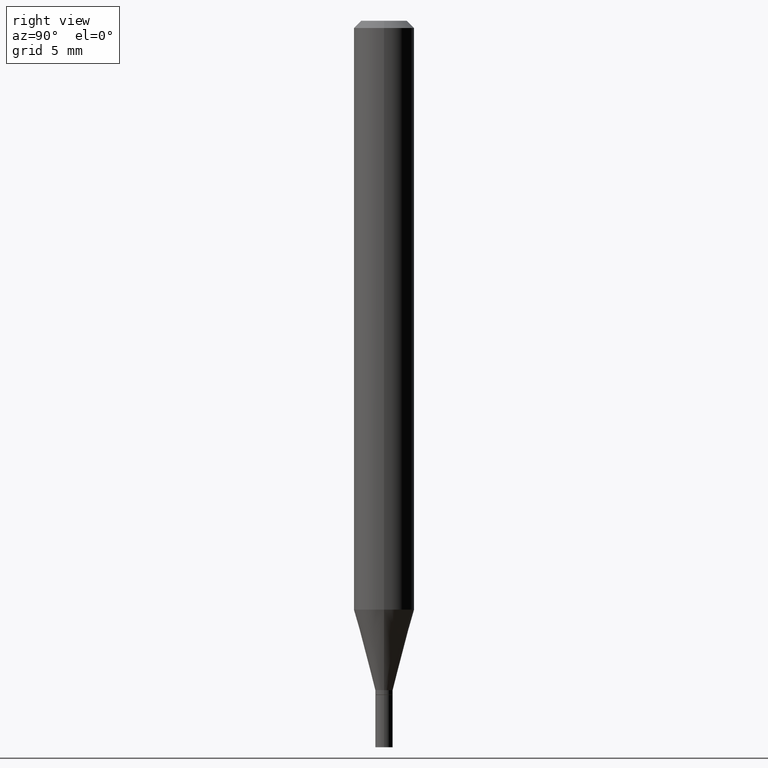
[diagram: clean part render]
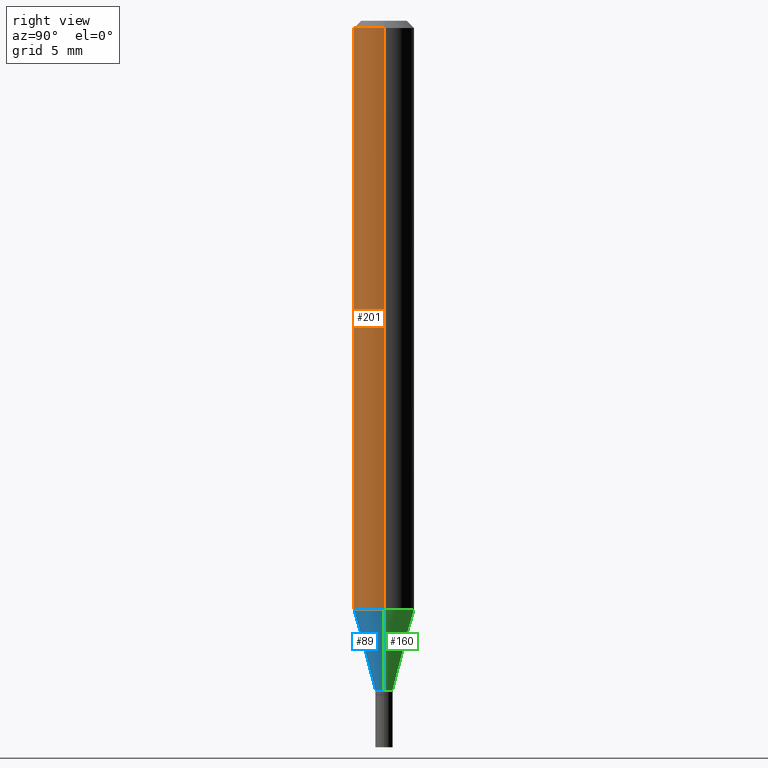
[diagram: same view with three faces highlighted in distinct colors, each labeled with its STEP entity id]
A machine part, right view with three faces highlighted in distinct colors.
Their STEP definitions:

[orange] entity #201 — the highlighted cylindrical surface (edge-blend (fillet) strip) has radius 1.5875 mm, axis along (-0, 0, 1).
#5 = DIRECTION ( 'NONE',  ( -2.445468806185136877E-29, 3.491481338843145188E-15, 1.000000000000000000 ) ) ;
#21 = LINE ( 'NONE', #234, #235 ) ;
#22 = EDGE_CURVE ( 'NONE', #134, #307, #421, .T. ) ;
#35 = CARTESIAN_POINT ( 'NONE',  ( 0.000000000000000000, 0.000000000000000000, 0.000000000000000000 ) ) ;
#49 = EDGE_CURVE ( 'NONE', #254, #442, #259, .T. ) ;
#52 = ORIENTED_EDGE ( 'NONE', *, *, #22, .F. ) ;
#55 = DIRECTION ( 'NONE',  ( -2.445468806185136597E-29, 3.491481338843145583E-15, 1.000000000000000000 ) ) ;
#64 = DIRECTION ( 'NONE',  ( 1.000000000000000000, -6.982962677686270655E-15, 0.000000000000000000 ) ) ;
#74 = EDGE_CURVE ( 'NONE', #254, #134, #145, .T. ) ;
#90 = AXIS2_PLACEMENT_3D ( 'NONE', #35, #200, #424 ) ;
#92 = VECTOR ( 'NONE', #5, 39.37007874015748143 ) ;
#109 = CYLINDRICAL_SURFACE ( 'NONE', #90, 0.06250000000000000000 ) ;
#134 = VERTEX_POINT ( 'NONE', #192 ) ;
#145 = LINE ( 'NONE', #386, #92 ) ;
#164 = CARTESIAN_POINT ( 'NONE',  ( 3.668203209277705088E-31, -5.237222008264718399E-17, -0.01499999999999999944 ) ) ;
#168 = EDGE_CURVE ( 'NONE', #442, #307, #21, .T. ) ;
#169 = CARTESIAN_POINT ( 'NONE',  ( -0.06250000000000001388, -3.801285834545430586E-15, -1.215923739063185183 ) ) ;
#182 = AXIS2_PLACEMENT_3D ( 'NONE', #232, #458, #64 ) ;
#192 = CARTESIAN_POINT ( 'NONE',  ( -0.06250000000000000000, -1.704784422389007524E-15, -0.01499999999999999944 ) ) ;
#200 = DIRECTION ( 'NONE',  ( -2.445468806185136597E-29, 3.491481338843145583E-15, 1.000000000000000000 ) ) ;
#201 = ADVANCED_FACE ( 'NONE', ( #276 ), #109, .T. ) ;
#230 = ORIENTED_EDGE ( 'NONE', *, *, #168, .T. ) ;
#232 = CARTESIAN_POINT ( 'NONE',  ( 2.973503574579014958E-29, -4.245375044395493202E-15, -1.215923739063185183 ) ) ;
#234 = CARTESIAN_POINT ( 'NONE',  ( 0.06250000000000000000, -4.364351673553916694E-16, 3.047610484872459871E-30 ) ) ;
#235 = VECTOR ( 'NONE', #382, 39.37007874015748143 ) ;
#254 = VERTEX_POINT ( 'NONE', #169 ) ;
#259 = CIRCLE ( 'NONE', #182, 0.06250000000000000000 ) ;
#276 = FACE_OUTER_BOUND ( 'NONE', #310, .T. ) ;
#283 = AXIS2_PLACEMENT_3D ( 'NONE', #164, #55, #454 ) ;
#292 = CARTESIAN_POINT ( 'NONE',  ( 0.06250000000000001388, -4.681810211750884871E-15, -1.215923739063185183 ) ) ;
#307 = VERTEX_POINT ( 'NONE', #387 ) ;
#310 = EDGE_LOOP ( 'NONE', ( #339, #417, #230, #52 ) ) ;
#339 = ORIENTED_EDGE ( 'NONE', *, *, #74, .F. ) ;
#382 = DIRECTION ( 'NONE',  ( -2.445468806185136877E-29, 3.491481338843145188E-15, 1.000000000000000000 ) ) ;
#386 = CARTESIAN_POINT ( 'NONE',  ( -0.06250000000000000000, 4.440892098500626162E-16, -3.074334431409316114E-30 ) ) ;
#387 = CARTESIAN_POINT ( 'NONE',  ( 0.06250000000000000000, -4.888073874380388472E-16, -0.01499999999999999944 ) ) ;
#417 = ORIENTED_EDGE ( 'NONE', *, *, #49, .T. ) ;
#421 = CIRCLE ( 'NONE', #283, 0.06250000000000000000 ) ;
#424 = DIRECTION ( 'NONE',  ( 1.000000000000000000, -6.982962677686266711E-15, 4.876176775795935793E-29 ) ) ;
#442 = VERTEX_POINT ( 'NONE', #292 ) ;
#454 = DIRECTION ( 'NONE',  ( 1.000000000000000000, -6.982962677686266711E-15, 0.000000000000000000 ) ) ;
#458 = DIRECTION ( 'NONE',  ( -2.445468806185136597E-29, 3.491481338843145583E-15, 1.000000000000000000 ) ) ;

[blue] entity #89 — the highlighted conical surface has half-angle 15 deg.
#23 = EDGE_CURVE ( 'NONE', #413, #442, #236, .T. ) ;
#32 = DIRECTION ( 'NONE',  ( -2.445468806185136597E-29, 3.491481338843145583E-15, 1.000000000000000000 ) ) ;
#41 = AXIS2_PLACEMENT_3D ( 'NONE', #247, #393, #76 ) ;
#49 = EDGE_CURVE ( 'NONE', #254, #442, #259, .T. ) ;
#64 = DIRECTION ( 'NONE',  ( 1.000000000000000000, -6.982962677686270655E-15, 0.000000000000000000 ) ) ;
#76 = DIRECTION ( 'NONE',  ( 1.000000000000000000, -6.982962677686256455E-15, 0.000000000000000000 ) ) ;
#86 = VECTOR ( 'NONE', #202, 39.37007874015748854 ) ;
#89 = ADVANCED_FACE ( 'NONE', ( #286 ), #389, .T. ) ;
#95 = ORIENTED_EDGE ( 'NONE', *, *, #414, .T. ) ;
#123 = CARTESIAN_POINT ( 'NONE',  ( 0.01799999999999991884, -4.950920538479579759E-15, -1.382000000000000117 ) ) ;
#148 = VECTOR ( 'NONE', #210, 39.37007874015748854 ) ;
#162 = ORIENTED_EDGE ( 'NONE', *, *, #49, .F. ) ;
#169 = CARTESIAN_POINT ( 'NONE',  ( -0.06250000000000001388, -3.801285834545430586E-15, -1.215923739063185183 ) ) ;
#182 = AXIS2_PLACEMENT_3D ( 'NONE', #232, #458, #64 ) ;
#202 = DIRECTION ( 'NONE',  ( 0.2588190451025211836, 1.565188264969622559E-15, 0.9659258262890679791 ) ) ;
#204 = CIRCLE ( 'NONE', #41, 0.01799999999999991884 ) ;
#210 = DIRECTION ( 'NONE',  ( -0.2588190451025211836, 5.211531920934547886E-15, 0.9659258262890679791 ) ) ;
#212 = CARTESIAN_POINT ( 'NONE',  ( 3.379637890147859239E-29, -4.825227210281227557E-15, -1.382000000000000117 ) ) ;
#216 = DIRECTION ( 'NONE',  ( 1.000000000000000000, -6.982962677686256455E-15, 0.000000000000000000 ) ) ;
#232 = CARTESIAN_POINT ( 'NONE',  ( 2.973503574579014958E-29, -4.245375044395493202E-15, -1.215923739063185183 ) ) ;
#236 = LINE ( 'NONE', #123, #86 ) ;
#242 = LINE ( 'NONE', #284, #148 ) ;
#247 = CARTESIAN_POINT ( 'NONE',  ( 3.379637890147859239E-29, -4.825227210281227557E-15, -1.382000000000000117 ) ) ;
#254 = VERTEX_POINT ( 'NONE', #169 ) ;
#259 = CIRCLE ( 'NONE', #182, 0.06250000000000000000 ) ;
#284 = CARTESIAN_POINT ( 'NONE',  ( -0.01799999999999991884, -4.697329517844410199E-15, -1.382000000000000117 ) ) ;
#285 = CARTESIAN_POINT ( 'NONE',  ( 0.01799999999999991884, -4.950920538479579759E-15, -1.382000000000000117 ) ) ;
#286 = FACE_OUTER_BOUND ( 'NONE', #407, .T. ) ;
#292 = CARTESIAN_POINT ( 'NONE',  ( 0.06250000000000001388, -4.681810211750884871E-15, -1.215923739063185183 ) ) ;
#308 = AXIS2_PLACEMENT_3D ( 'NONE', #212, #32, #216 ) ;
#330 = ORIENTED_EDGE ( 'NONE', *, *, #23, .T. ) ;
#344 = ORIENTED_EDGE ( 'NONE', *, *, #370, .F. ) ;
#361 = CARTESIAN_POINT ( 'NONE',  ( -0.01799999999999991884, -4.249307676194920787E-15, -1.382000000000000117 ) ) ;
#370 = EDGE_CURVE ( 'NONE', #456, #254, #242, .T. ) ;
#389 = CONICAL_SURFACE ( 'NONE', #308, 0.01799999999999991884, 0.2617993877991499074 ) ;
#393 = DIRECTION ( 'NONE',  ( -2.445468806185136597E-29, 3.491481338843145583E-15, 1.000000000000000000 ) ) ;
#407 = EDGE_LOOP ( 'NONE', ( #344, #95, #330, #162 ) ) ;
#413 = VERTEX_POINT ( 'NONE', #285 ) ;
#414 = EDGE_CURVE ( 'NONE', #456, #413, #204, .T. ) ;
#442 = VERTEX_POINT ( 'NONE', #292 ) ;
#456 = VERTEX_POINT ( 'NONE', #361 ) ;
#458 = DIRECTION ( 'NONE',  ( -2.445468806185136597E-29, 3.491481338843145583E-15, 1.000000000000000000 ) ) ;

[green] entity #160 — the highlighted conical surface has half-angle 15 deg.
#23 = EDGE_CURVE ( 'NONE', #413, #442, #236, .T. ) ;
#56 = DIRECTION ( 'NONE',  ( 1.000000000000000000, -6.982962677686256455E-15, 0.000000000000000000 ) ) ;
#73 = AXIS2_PLACEMENT_3D ( 'NONE', #309, #128, #271 ) ;
#86 = VECTOR ( 'NONE', #202, 39.37007874015748854 ) ;
#105 = ORIENTED_EDGE ( 'NONE', *, *, #23, .F. ) ;
#123 = CARTESIAN_POINT ( 'NONE',  ( 0.01799999999999991884, -4.950920538479579759E-15, -1.382000000000000117 ) ) ;
#128 = DIRECTION ( 'NONE',  ( -2.445468806185136597E-29, 3.491481338843145583E-15, 1.000000000000000000 ) ) ;
#148 = VECTOR ( 'NONE', #210, 39.37007874015748854 ) ;
#150 = EDGE_CURVE ( 'NONE', #413, #456, #155, .T. ) ;
#155 = CIRCLE ( 'NONE', #446, 0.01799999999999991884 ) ;
#158 = EDGE_LOOP ( 'NONE', ( #398, #334, #321, #105 ) ) ;
#160 = ADVANCED_FACE ( 'NONE', ( #163 ), #320, .T. ) ;
#163 = FACE_OUTER_BOUND ( 'NONE', #158, .T. ) ;
#169 = CARTESIAN_POINT ( 'NONE',  ( -0.06250000000000001388, -3.801285834545430586E-15, -1.215923739063185183 ) ) ;
#189 = DIRECTION ( 'NONE',  ( -2.445468806185136597E-29, 3.491481338843145583E-15, 1.000000000000000000 ) ) ;
#202 = DIRECTION ( 'NONE',  ( 0.2588190451025211836, 1.565188264969622559E-15, 0.9659258262890679791 ) ) ;
#210 = DIRECTION ( 'NONE',  ( -0.2588190451025211836, 5.211531920934547886E-15, 0.9659258262890679791 ) ) ;
#236 = LINE ( 'NONE', #123, #86 ) ;
#242 = LINE ( 'NONE', #284, #148 ) ;
#254 = VERTEX_POINT ( 'NONE', #169 ) ;
#264 = CIRCLE ( 'NONE', #388, 0.06250000000000000000 ) ;
#271 = DIRECTION ( 'NONE',  ( 1.000000000000000000, -6.982962677686256455E-15, 0.000000000000000000 ) ) ;
#284 = CARTESIAN_POINT ( 'NONE',  ( -0.01799999999999991884, -4.697329517844410199E-15, -1.382000000000000117 ) ) ;
#285 = CARTESIAN_POINT ( 'NONE',  ( 0.01799999999999991884, -4.950920538479579759E-15, -1.382000000000000117 ) ) ;
#292 = CARTESIAN_POINT ( 'NONE',  ( 0.06250000000000001388, -4.681810211750884871E-15, -1.215923739063185183 ) ) ;
#295 = DIRECTION ( 'NONE',  ( 1.000000000000000000, -6.982962677686270655E-15, 0.000000000000000000 ) ) ;
#309 = CARTESIAN_POINT ( 'NONE',  ( 3.379637890147859239E-29, -4.825227210281227557E-15, -1.382000000000000117 ) ) ;
#320 = CONICAL_SURFACE ( 'NONE', #73, 0.01799999999999991884, 0.2617993877991499074 ) ;
#321 = ORIENTED_EDGE ( 'NONE', *, *, #430, .F. ) ;
#325 = CARTESIAN_POINT ( 'NONE',  ( 2.973503574579014958E-29, -4.245375044395493202E-15, -1.215923739063185183 ) ) ;
#334 = ORIENTED_EDGE ( 'NONE', *, *, #370, .T. ) ;
#361 = CARTESIAN_POINT ( 'NONE',  ( -0.01799999999999991884, -4.249307676194920787E-15, -1.382000000000000117 ) ) ;
#370 = EDGE_CURVE ( 'NONE', #456, #254, #242, .T. ) ;
#377 = CARTESIAN_POINT ( 'NONE',  ( 3.379637890147859239E-29, -4.825227210281227557E-15, -1.382000000000000117 ) ) ;
#388 = AXIS2_PLACEMENT_3D ( 'NONE', #325, #404, #295 ) ;
#398 = ORIENTED_EDGE ( 'NONE', *, *, #150, .T. ) ;
#404 = DIRECTION ( 'NONE',  ( -2.445468806185136597E-29, 3.491481338843145583E-15, 1.000000000000000000 ) ) ;
#413 = VERTEX_POINT ( 'NONE', #285 ) ;
#430 = EDGE_CURVE ( 'NONE', #442, #254, #264, .T. ) ;
#442 = VERTEX_POINT ( 'NONE', #292 ) ;
#446 = AXIS2_PLACEMENT_3D ( 'NONE', #377, #189, #56 ) ;
#456 = VERTEX_POINT ( 'NONE', #361 ) ;